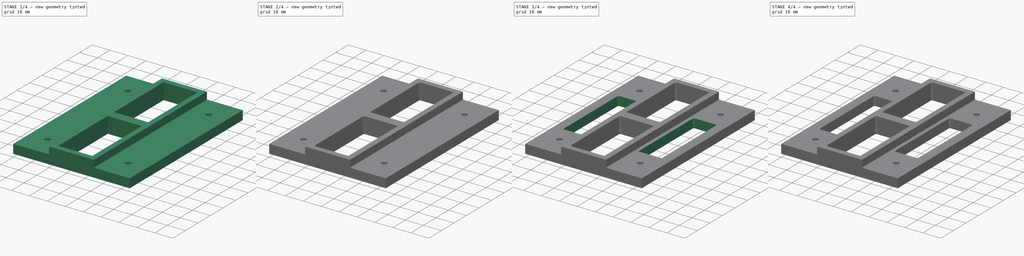
[diagram: build sequence overview — one tinted view per stage of 4, left to right]
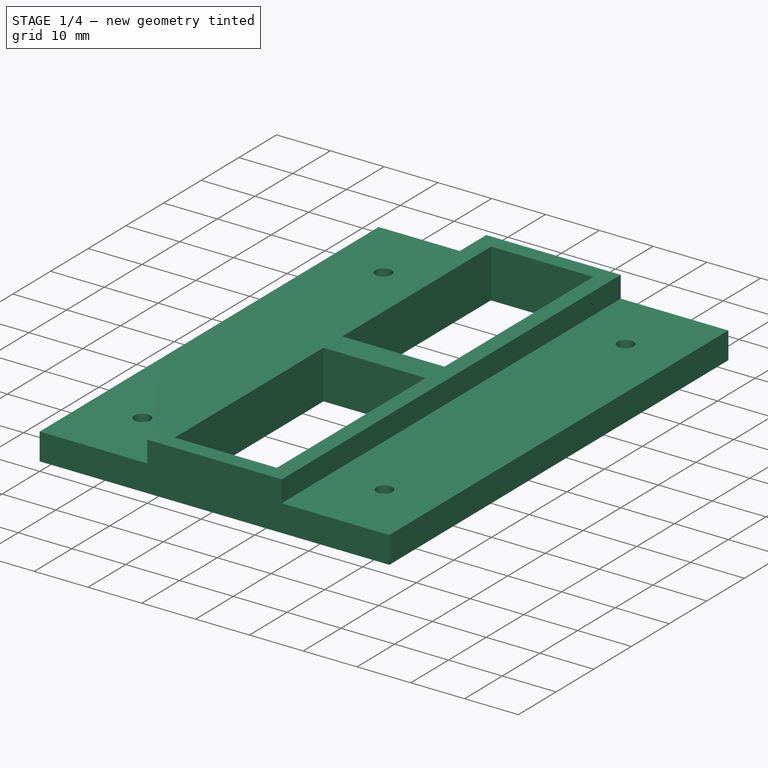
[diagram: stage 1 of 4 — iso view after this stage's code; geometry added in this stage tinted green]
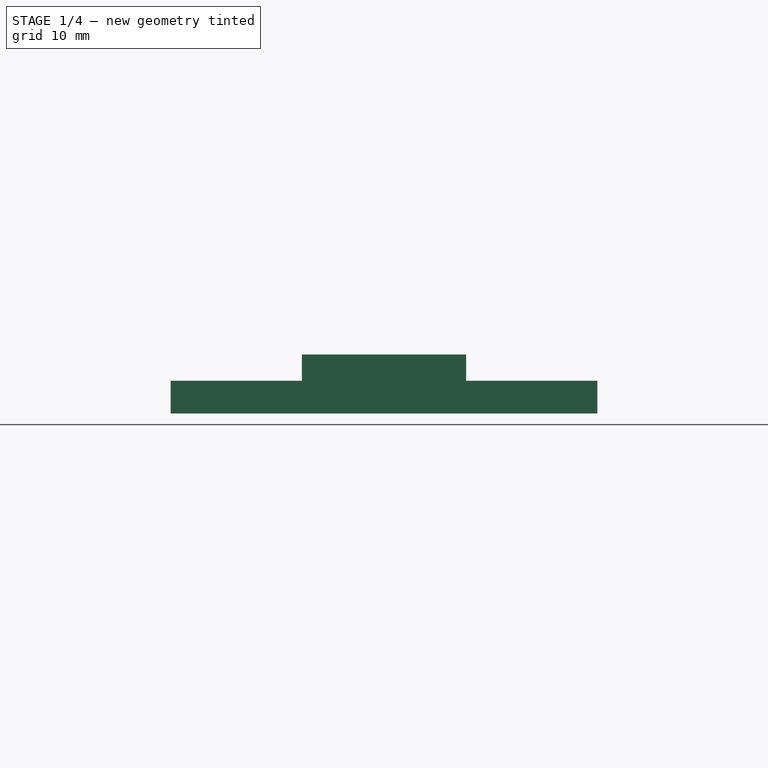
[diagram: stage 1 of 4 — front view after this stage's code; geometry added in this stage tinted green]
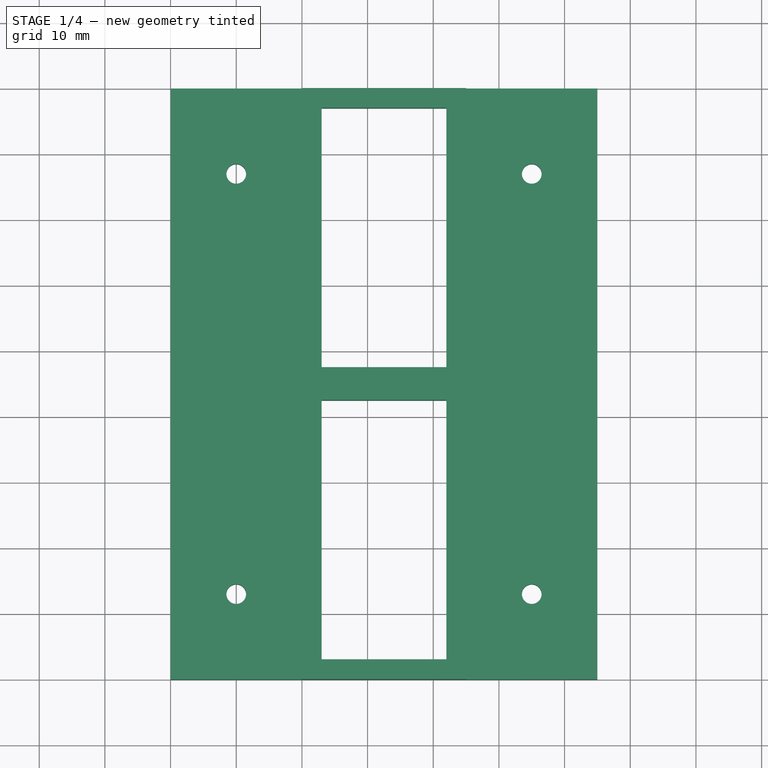
[diagram: stage 1 of 4 — top view after this stage's code; geometry added in this stage tinted green]
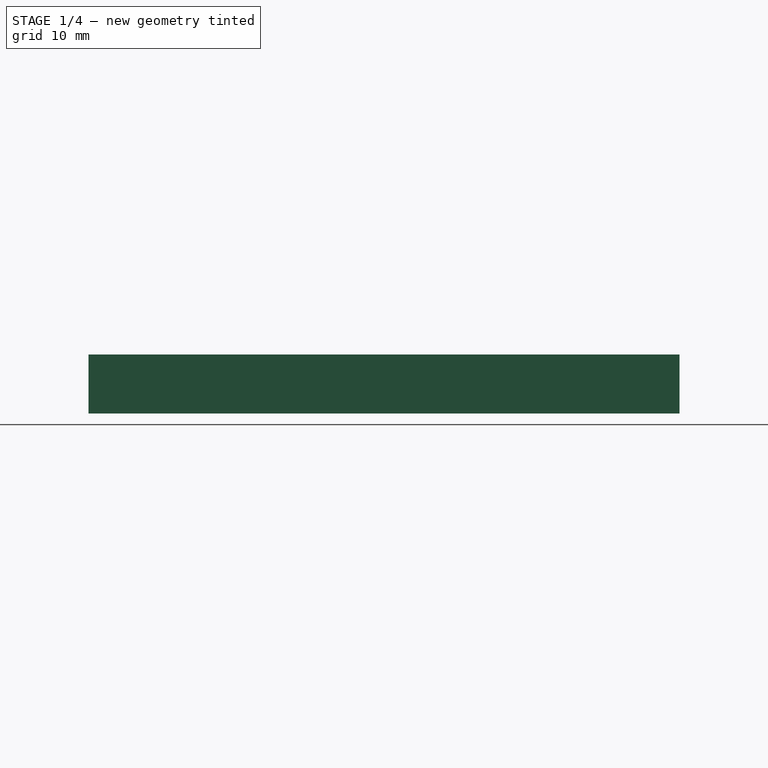
[diagram: stage 1 of 4 — right view after this stage's code; geometry added in this stage tinted green]
FCSTD DOCUMENT  (FreeCAD 0.16R6710 (Git))
Label: LiaisonPlateau_ht
License: All rights reserved
LicenseURL: http://en.wikipedia.org/wiki/All_rights_reserved
objects: PartDesign::Fillet×8, Sketcher::SketchObject×5, PartDesign::Pocket×3, PartDesign::Pad×2
note: 23 computed .brp shape members not serialized (recipe doc carries the construction recipe); baked Part::Feature solids carry a one-line shape summary decoded from their .brp

FEATURE [Sketcher::SketchObject] Sketch
  sketch-geometry (9):
    g0: LineSegment StartX=0 StartY=0 StartZ=0 EndX=65 EndY=0 EndZ=0
    g1: LineSegment StartX=65 StartY=0 StartZ=0 EndX=65 EndY=-90 EndZ=0
    g2: LineSegment StartX=65 StartY=-90 StartZ=0 EndX=0 EndY=-90 EndZ=0
    g3: LineSegment StartX=0 StartY=-90 StartZ=0 EndX=0 EndY=0 EndZ=0
    g4: Circle CenterX=10 CenterY=-13 CenterZ=0 NormalX=0 NormalY=0 NormalZ=1 Radius=1.5
    g5: Circle CenterX=10 CenterY=-77 CenterZ=0 NormalX=0 NormalY=0 NormalZ=1 Radius=1.5
    g6: Circle CenterX=55 CenterY=-13 CenterZ=0 NormalX=0 NormalY=0 NormalZ=1 Radius=1.5
    g7: Circle CenterX=55 CenterY=-77 CenterZ=0 NormalX=0 NormalY=0 NormalZ=1 Radius=1.5
    g8: LineSegment [constr] StartX=32.5 StartY=0 StartZ=0 EndX=32.5 EndY=-90 EndZ=0
  constraints (28):
    c: Coincident(g0,g1)
    c: Coincident(g1,g2)
    c: Coincident(g2,g3)
    c: Coincident(g3,g0)
    c: Horizontal(g0)
    c: Horizontal(g2)
    c: Vertical(g1)
    c: Vertical(g3)
    c: PointOnObject(g-1,g3)
    c: DistanceX(g0,g0) = 65
    c: Coincident(g0,g-1)
    c: DistanceY(g1,g1) = 90
    c: Vertical(g8)
    c: Symmetric(g-1,g0,g8)
    c: Radius(g4) = 1.5
    c: Equal(g4,g5)
    c: Equal(g4,g7)
    c: Equal(g4,g6)
    c: DistanceY(g1,g7) = 13
    c: DistanceY(g2,g5) = 13
    c: DistanceY(g6,g0) = 13
    c: DistanceY(g4,g-1) = 13
    c: Symmetric(g4,g6,g8)
    c: DistanceX(g4,g6) = 45
    c: Symmetric(g7,g5,g8)
    c: DistanceX(g5,g7) = 45
    c: PointOnObject(g8,g0)
    c: PointOnObject(g8,g2)
FEATURE [PartDesign::Pad] Pad
  Length = 5
  Length2 = 100
  Sketch = -> Sketch
  Type = 0
FEATURE [Sketcher::SketchObject] Sketch002
  ExternalGeometry = -> [Pad]
  Placement = pos=(0,0,5) rot=(0,0,1;0rad)
  Support = -> Pad [Face10]
  sketch-geometry (4):
    g0: LineSegment StartX=45 StartY=0 StartZ=0 EndX=45 EndY=-90 EndZ=0
    g1: LineSegment StartX=45 StartY=-90 StartZ=0 EndX=20 EndY=-90 EndZ=0
    g2: LineSegment StartX=20 StartY=-90 StartZ=0 EndX=20 EndY=0 EndZ=0
    g3: LineSegment StartX=20 StartY=0 StartZ=0 EndX=45 EndY=0 EndZ=0
  constraints (13):
    c: Coincident(g0,g1)
    c: Coincident(g1,g2)
    c: Horizontal(g1)
    c: Vertical(g0)
    c: Vertical(g2)
    c: PointOnObject(g0,g-4)
    c: PointOnObject(g0,g-3)
    c: DistanceX(g0,g-3) = 20
    c: DistanceX(g-1,g2) = 20
    c: PointOnObject(g3,g2)
    c: Horizontal(g3)
    c: Coincident(g3,g2)
    c: Coincident(g3,g0)
FEATURE [PartDesign::Pad] Pad001
  Length = 4
  Length2 = 100
  Sketch = -> Sketch002
  Type = 0
FEATURE [Sketcher::SketchObject] Sketch003
  ExternalGeometry = -> [Pad001]
  Placement = pos=(0,0,9) rot=(0,0,1;0rad)
  Support = -> Pad001 [Face16]
  sketch-geometry (11):
    g0: LineSegment StartX=23 StartY=-3 StartZ=0 EndX=42 EndY=-3 EndZ=0
    g1: LineSegment StartX=42 StartY=-3 StartZ=0 EndX=42 EndY=-42.5 EndZ=0
    g2: LineSegment StartX=42 StartY=-87 StartZ=0 EndX=23 EndY=-87 EndZ=0
    g3: LineSegment StartX=23 StartY=-87 StartZ=0 EndX=23 EndY=-47.5 EndZ=0
    g4: LineSegment StartX=23 StartY=-42.5 StartZ=0 EndX=42 EndY=-42.5 EndZ=0
    g5: LineSegment StartX=23 StartY=-47.5 StartZ=0 EndX=42 EndY=-47.5 EndZ=0
    g6: LineSegment [constr] StartX=23 StartY=-45 StartZ=0 EndX=42 EndY=-45 EndZ=0
    g7: LineSegment StartX=23 StartY=-42.5 StartZ=0 EndX=23 EndY=-3 EndZ=0
    g8: LineSegment StartX=42 StartY=-47.5 StartZ=0 EndX=42 EndY=-87 EndZ=0
    g9: LineSegment [constr] StartX=23 StartY=-42.5 StartZ=0 EndX=23 EndY=-47.5 EndZ=0
    g10: LineSegment [constr] StartX=42 StartY=-42.5 StartZ=0 EndX=42 EndY=-47.5 EndZ=0
  constraints (32):
    c: Coincident(g0,g1)
    c: Coincident(g8,g2)
    c: Coincident(g2,g3)
    c: Coincident(g7,g0)
    c: Horizontal(g0)
    c: Horizontal(g2)
    c: Vertical(g1)
    c: Vertical(g3)
    c: DistanceY(g0,g-3) = 3
    c: DistanceX(g0,g-3) = 3
    c: DistanceX(g-4,g0) = 3
    c: DistanceY(g-4,g2) = 3
    c: Horizontal(g4)
    c: PointOnObject(g5,g1)
    c: Horizontal(g5)
    c: Horizontal(g6)
    c: Symmetric(g0,g2,g6)
    c: PointOnObject(g7,g4)
    c: Tangent(g3,g7)
    c: Coincident(g3,g5)
    c: Coincident(g1,g4)
    c: Tangent(g1,g8)
    c: PointOnObject(g8,g5)
    c: Coincident(g9,g4)
    c: Coincident(g9,g3)
    c: Coincident(g10,g1)
    c: Coincident(g10,g5)
    c: PointOnObject(g6,g10)
    c: PointOnObject(g6,g9)
    c: Coincident(g4,g7)
    c: DistanceY(g3,g4) = 5
    c: Symmetric(g4,g3,g6)
FEATURE [PartDesign::Pocket] Pocket
  Length = 5
  Sketch = -> Sketch003
  Type = 1
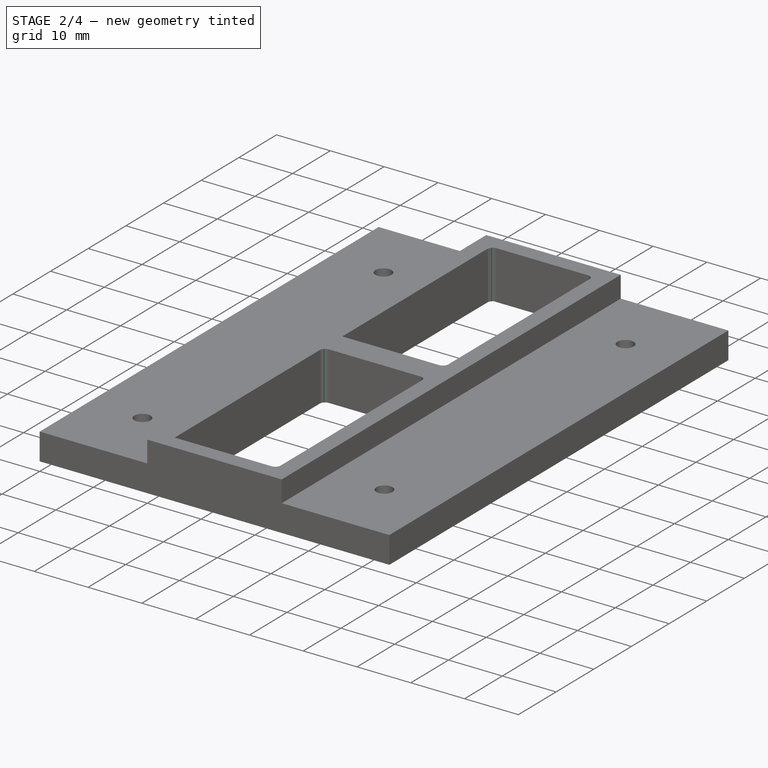
[diagram: stage 2 of 4 — iso view after this stage's code; geometry added in this stage tinted green]
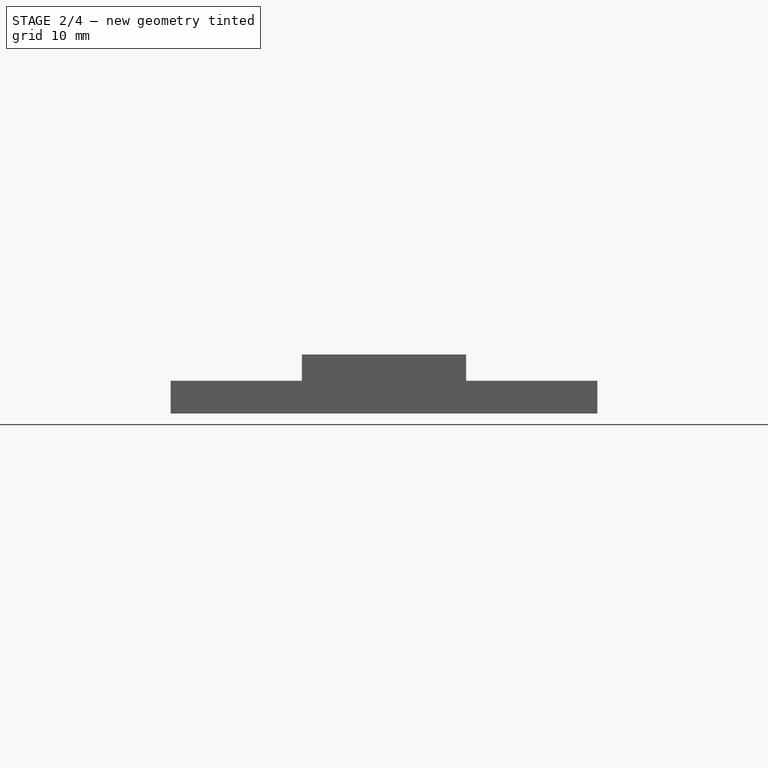
[diagram: stage 2 of 4 — front view after this stage's code; geometry added in this stage tinted green]
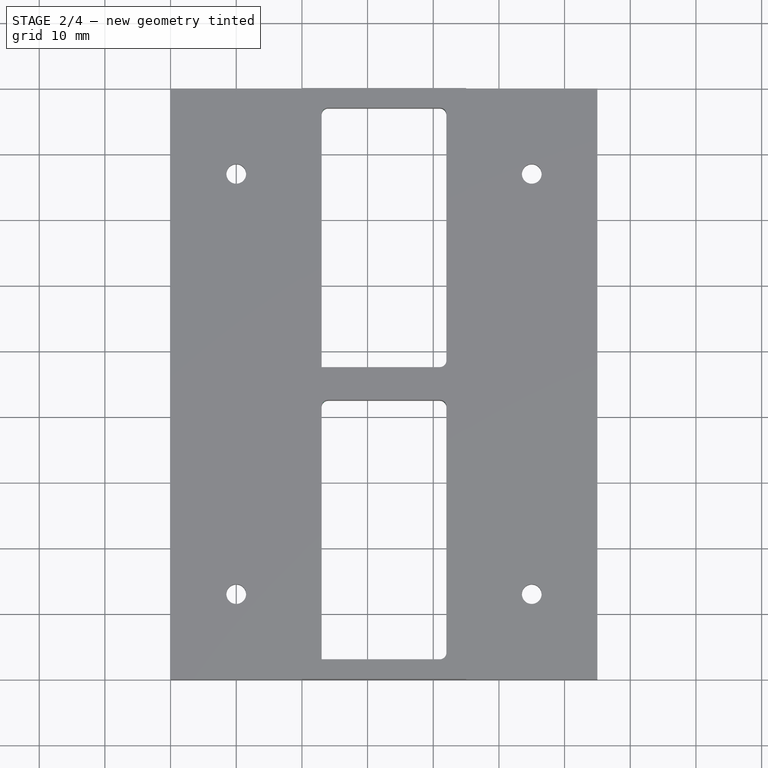
[diagram: stage 2 of 4 — top view after this stage's code; geometry added in this stage tinted green]
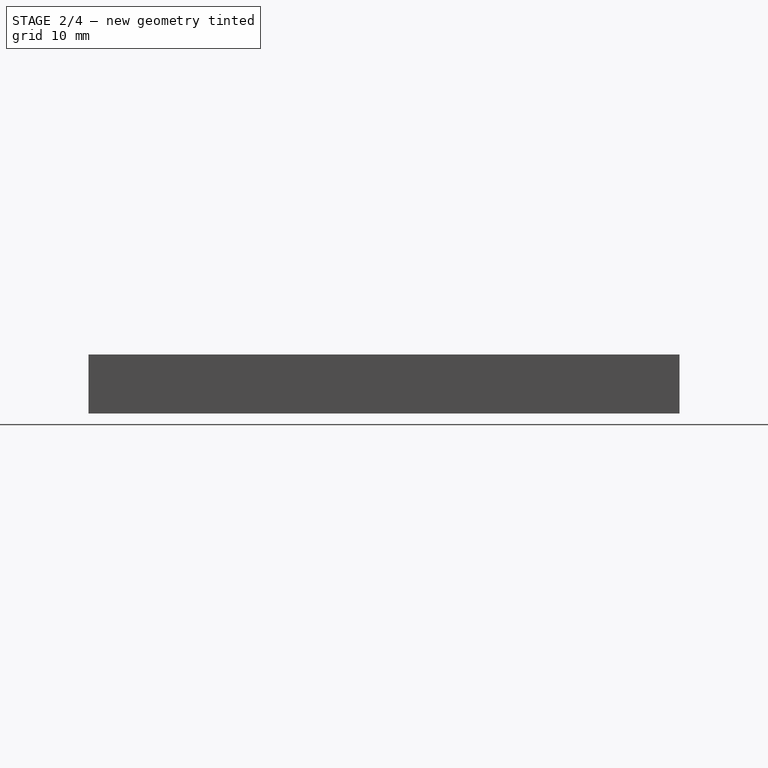
[diagram: stage 2 of 4 — right view after this stage's code; geometry added in this stage tinted green]
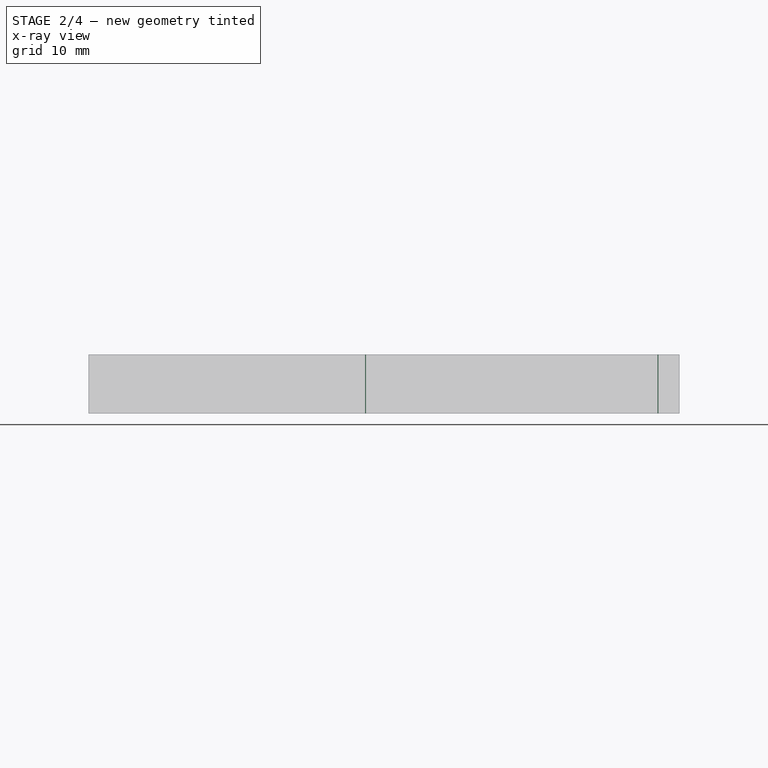
[diagram: stage 2 of 4 — x-ray composite at the right view; earlier geometry ghosted, this stage's added geometry solid]
FEATURE [PartDesign::Fillet] Fillet
  Base = -> Pocket [Edge51,Edge43]
  Radius = 1
FEATURE [PartDesign::Fillet] Fillet001
  Base = -> Fillet [Edge27,Edge57]
  Radius = 1
FEATURE [PartDesign::Fillet] Fillet002
  Base = -> Fillet001 [Edge29,Edge61]
  Radius = 1
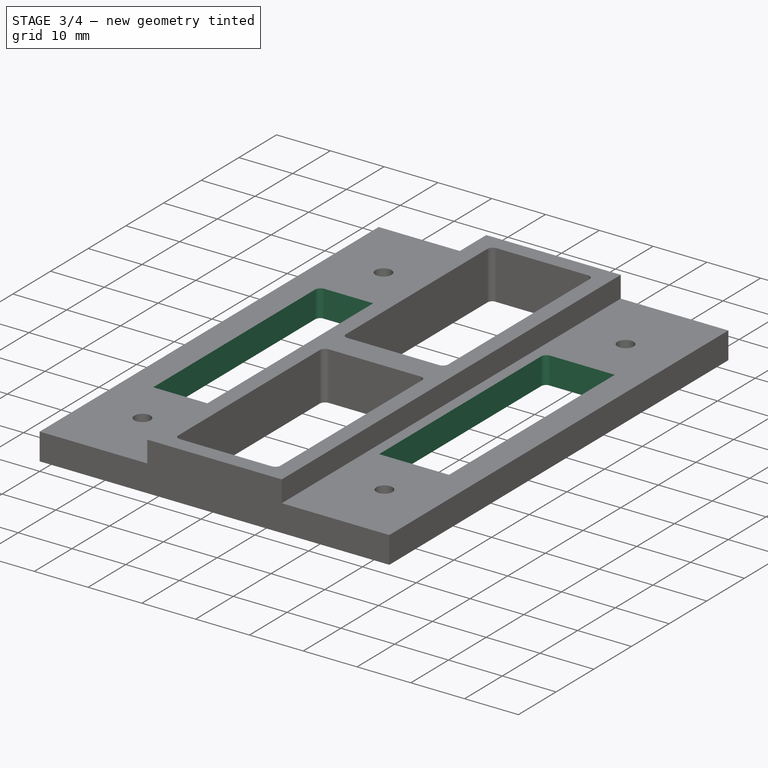
[diagram: stage 3 of 4 — iso view after this stage's code; geometry added in this stage tinted green]
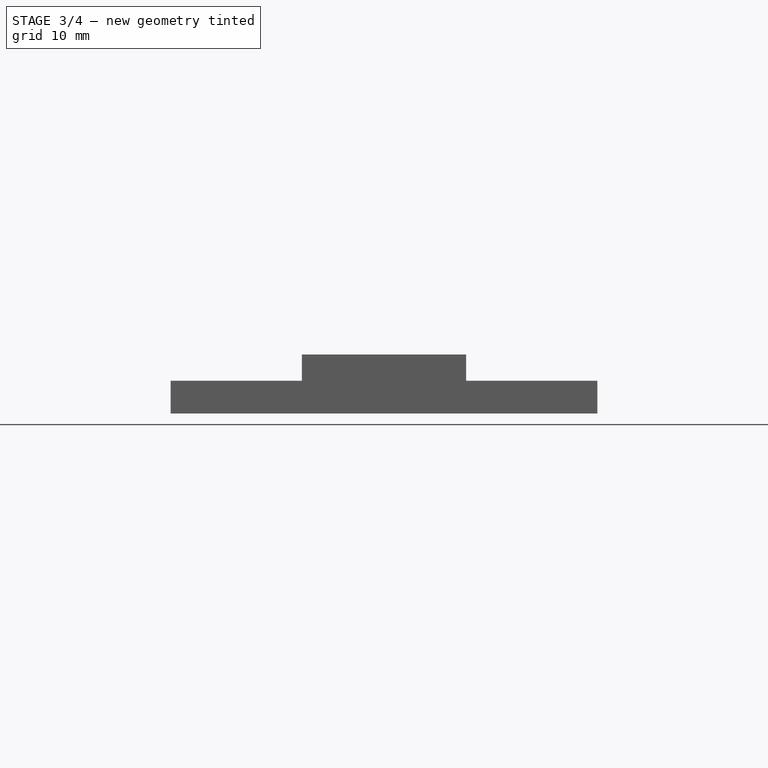
[diagram: stage 3 of 4 — front view after this stage's code; geometry added in this stage tinted green]
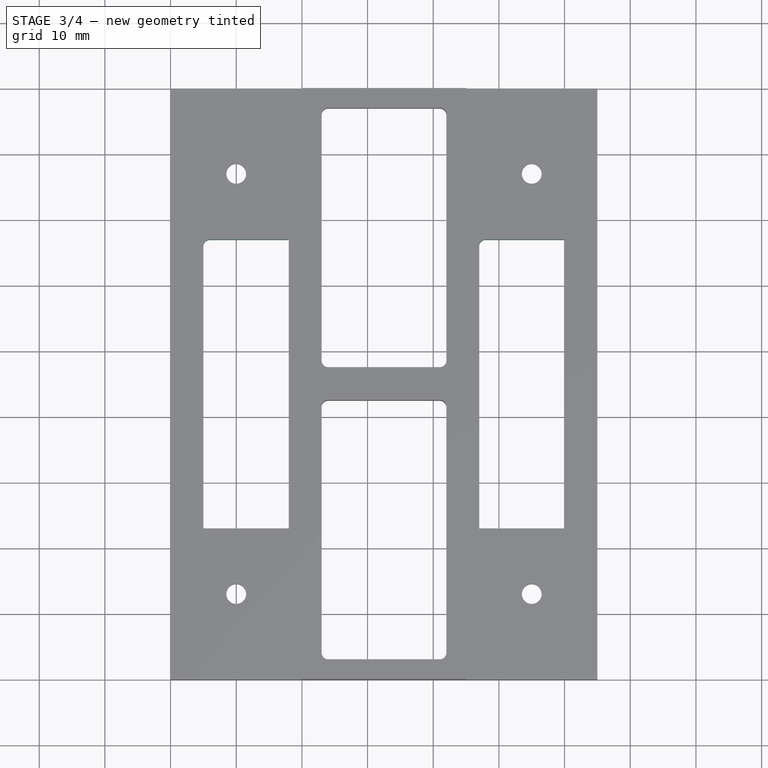
[diagram: stage 3 of 4 — top view after this stage's code; geometry added in this stage tinted green]
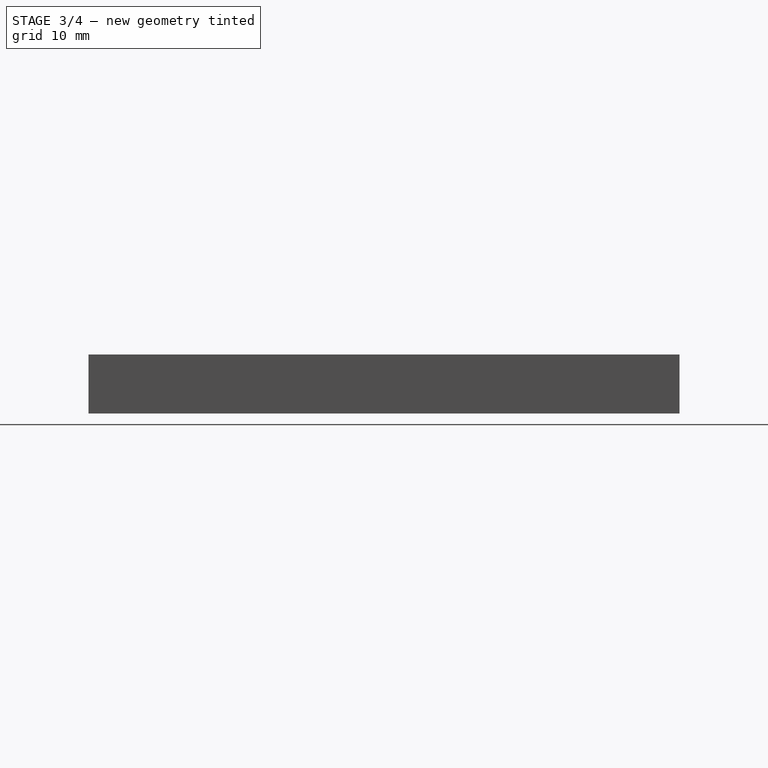
[diagram: stage 3 of 4 — right view after this stage's code; geometry added in this stage tinted green]
FEATURE [PartDesign::Fillet] Fillet003
  Base = -> Fillet002 [Edge31,Edge65]
  Radius = 1
FEATURE [Sketcher::SketchObject] Sketch004
  ExternalGeometry = -> [Fillet003]
  Placement = pos=(0,0,0) rot=(1,0,0;3.14159rad)
  Support = -> Fillet003 [Face1]
  sketch-geometry (4):
    g0: Circle CenterX=10 CenterY=77 CenterZ=0 NormalX=0 NormalY=0 NormalZ=1 Radius=3
    g1: Circle CenterX=55 CenterY=77 CenterZ=0 NormalX=0 NormalY=0 NormalZ=1 Radius=3
    g2: Circle CenterX=55 CenterY=13 CenterZ=0 NormalX=0 NormalY=0 NormalZ=1 Radius=3
    g3: Circle CenterX=10 CenterY=13 CenterZ=0 NormalX=0 NormalY=0 NormalZ=1 Radius=3
  constraints (8):
    c: Radius(g1) = 3
    c: Equal(g1,g0)
    c: Equal(g1,g3)
    c: Equal(g1,g2)
    c: Coincident(g0,g-3)
    c: Coincident(g1,g-4)
    c: Coincident(g3,g-6)
    c: Coincident(g2,g-5)
FEATURE [PartDesign::Pocket] Pocket001
  Length = 3
  Sketch = -> Sketch004
  Type = 0
FEATURE [Sketcher::SketchObject] Sketch005
  ExternalGeometry = -> [Pocket001]
  Placement = pos=(0,0,0) rot=(1,0,0;3.14159rad)
  Support = -> Pocket001 [Face1]
  sketch-geometry (8):
    g0: LineSegment StartX=5 StartY=67 StartZ=0 EndX=18 EndY=67 EndZ=0
    g1: LineSegment StartX=18 StartY=67 StartZ=0 EndX=18 EndY=23 EndZ=0
    g2: LineSegment StartX=18 StartY=23 StartZ=0 EndX=5 EndY=23 EndZ=0
    g3: LineSegment StartX=5 StartY=23 StartZ=0 EndX=5 EndY=67 EndZ=0
    g4: LineSegment StartX=47 StartY=67 StartZ=0 EndX=60 EndY=67 EndZ=0
    g5: LineSegment StartX=60 StartY=67 StartZ=0 EndX=60 EndY=23 EndZ=0
    g6: LineSegment StartX=60 StartY=23 StartZ=0 EndX=47 EndY=23 EndZ=0
    g7: LineSegment StartX=47 StartY=23 StartZ=0 EndX=47 EndY=67 EndZ=0
  constraints (24):
    c: Coincident(g0,g1)
    c: Coincident(g1,g2)
    c: Coincident(g2,g3)
    c: Coincident(g3,g0)
    c: Horizontal(g0)
    c: Horizontal(g2)
    c: Vertical(g1)
    c: Vertical(g3)
    c: Coincident(g4,g5)
    c: Coincident(g5,g6)
    c: Coincident(g6,g7)
    c: Coincident(g7,g4)
    c: Horizontal(g4)
    c: Horizontal(g6)
    c: Vertical(g5)
    c: Vertical(g7)
    c: DistanceY(g4,g-3) = 10
    c: DistanceX(g-9,g4) = 5
    c: DistanceX(g4,g-7) = 5
    c: DistanceY(g-6,g5) = 10
    c: DistanceX(g-1,g2) = 5
    c: DistanceY(g-5,g2) = 10
    c: DistanceX(g0,g-10) = 5
    c: DistanceY(g0,g-4) = 10
FEATURE [PartDesign::Pocket] Pocket002
  Length = 5
  Sketch = -> Sketch005
  Type = 1
FEATURE [PartDesign::Fillet] Fillet004
  Base = -> Pocket002 [Edge47,Edge96]
  Radius = 1
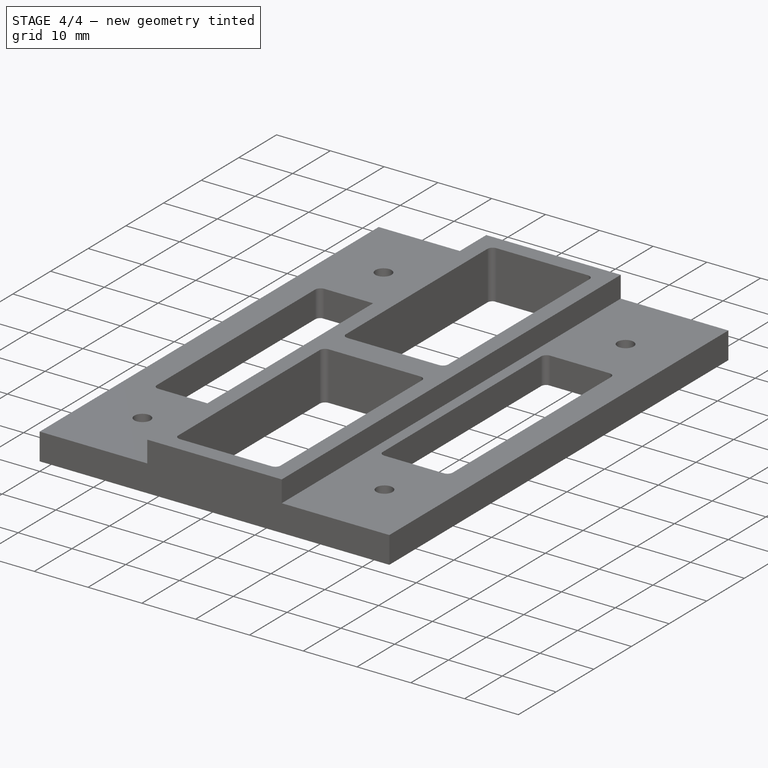
[diagram: stage 4 of 4 — iso view after this stage's code; geometry added in this stage tinted green]
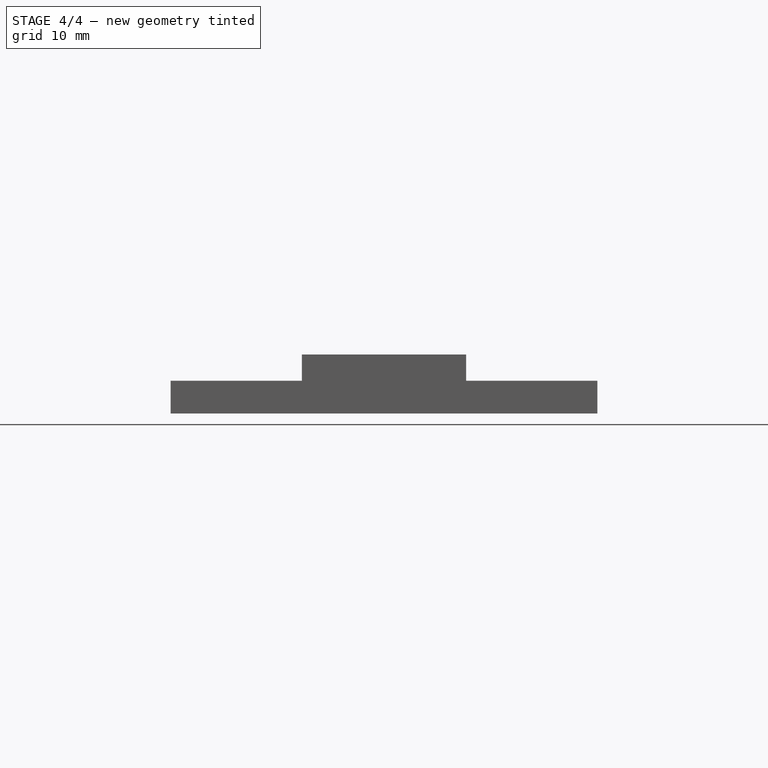
[diagram: stage 4 of 4 — front view after this stage's code; geometry added in this stage tinted green]
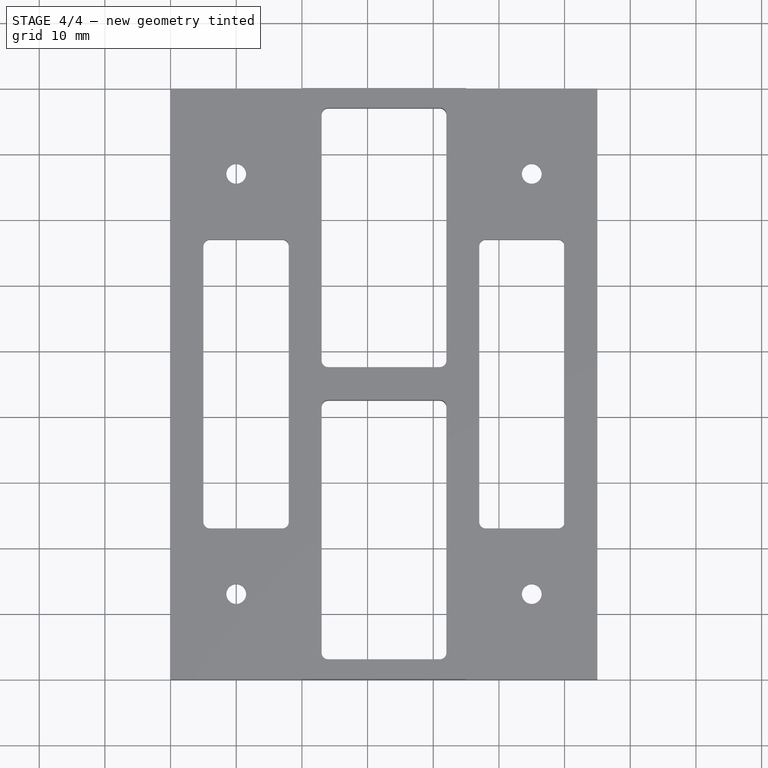
[diagram: stage 4 of 4 — top view after this stage's code; geometry added in this stage tinted green]
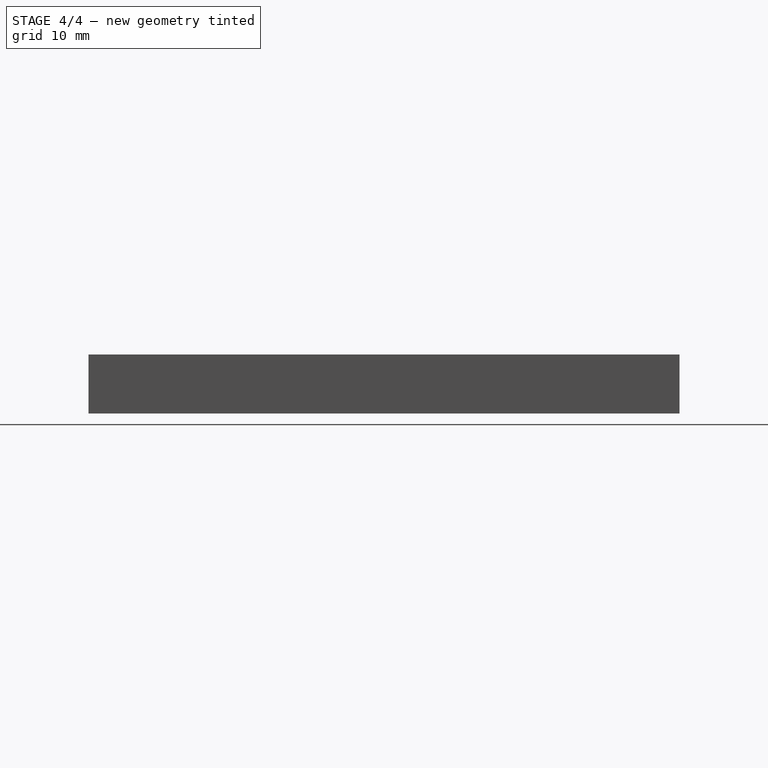
[diagram: stage 4 of 4 — right view after this stage's code; geometry added in this stage tinted green]
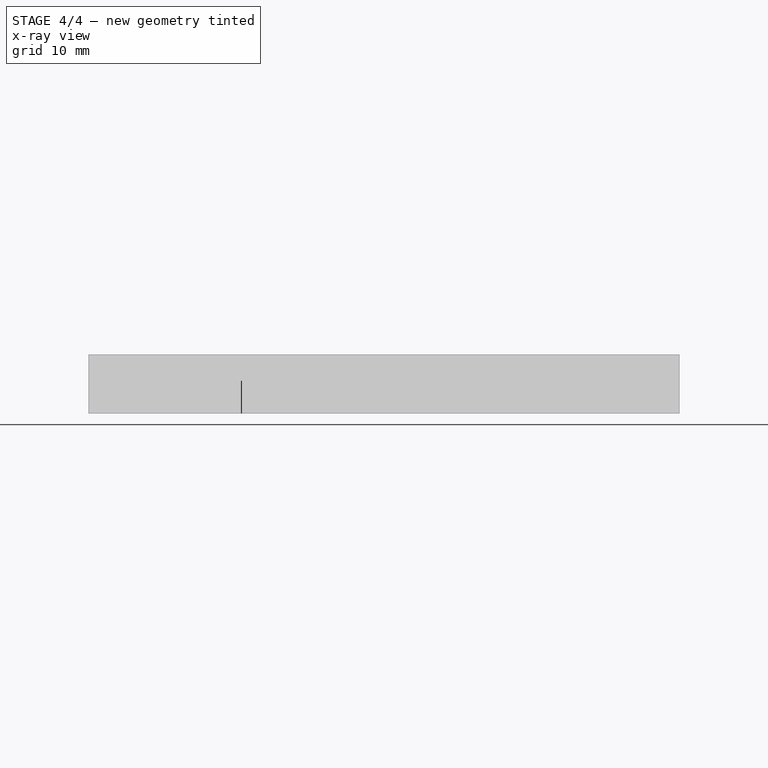
[diagram: stage 4 of 4 — x-ray composite at the right view; earlier geometry ghosted, this stage's added geometry solid]
FEATURE [PartDesign::Fillet] Fillet005
  Base = -> Fillet004 [Edge36,Edge104]
  Radius = 1
FEATURE [PartDesign::Fillet] Fillet006
  Base = -> Fillet005 [Edge44,Edge108]
  Radius = 1
FEATURE [PartDesign::Fillet] Fillet007
  Base = -> Fillet006 [Edge46,Edge112]
  Radius = 1
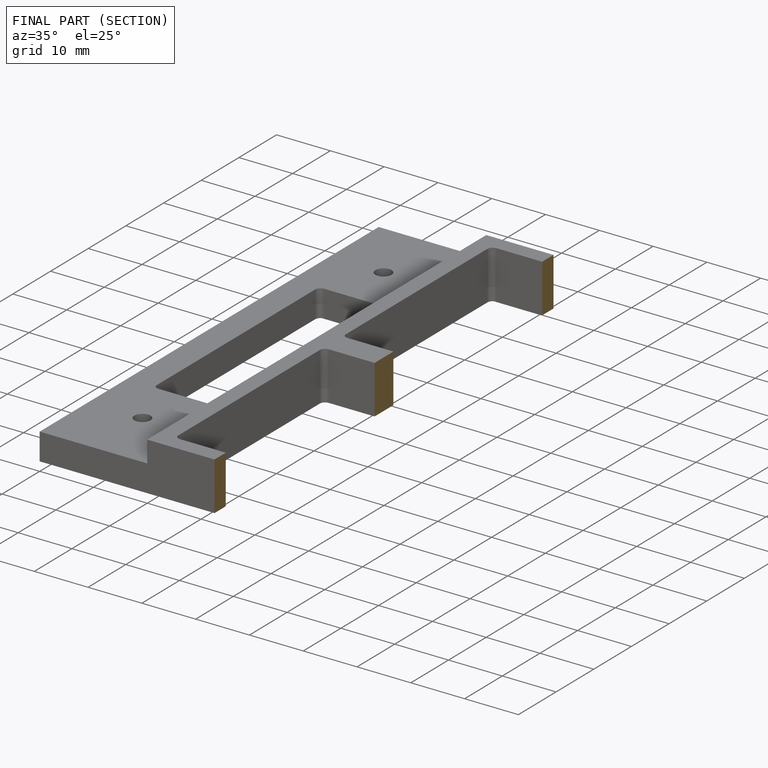
[diagram: finished part — half-section view (interior)]
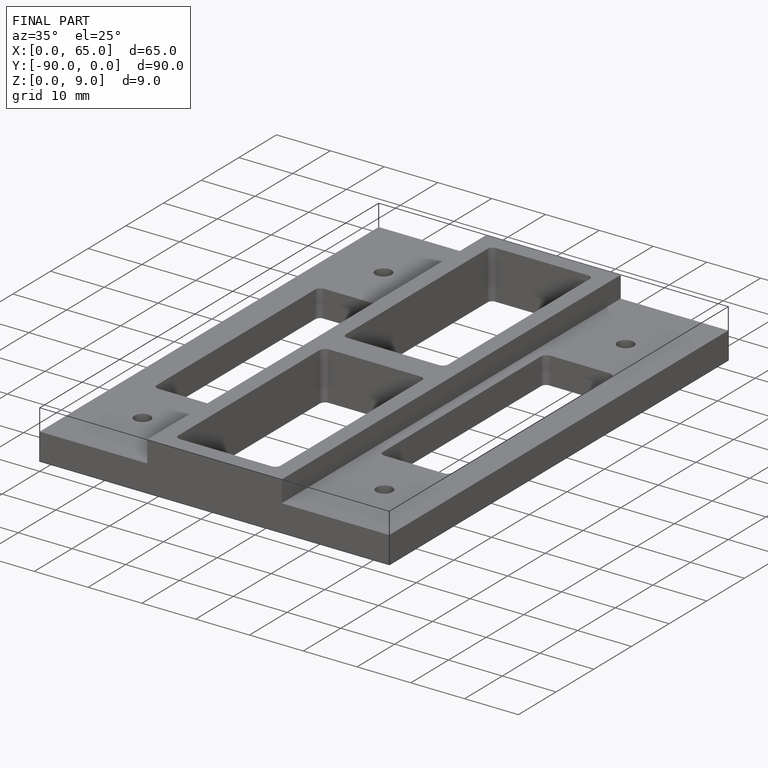
[diagram: finished part — iso view with bounding-box wireframe]
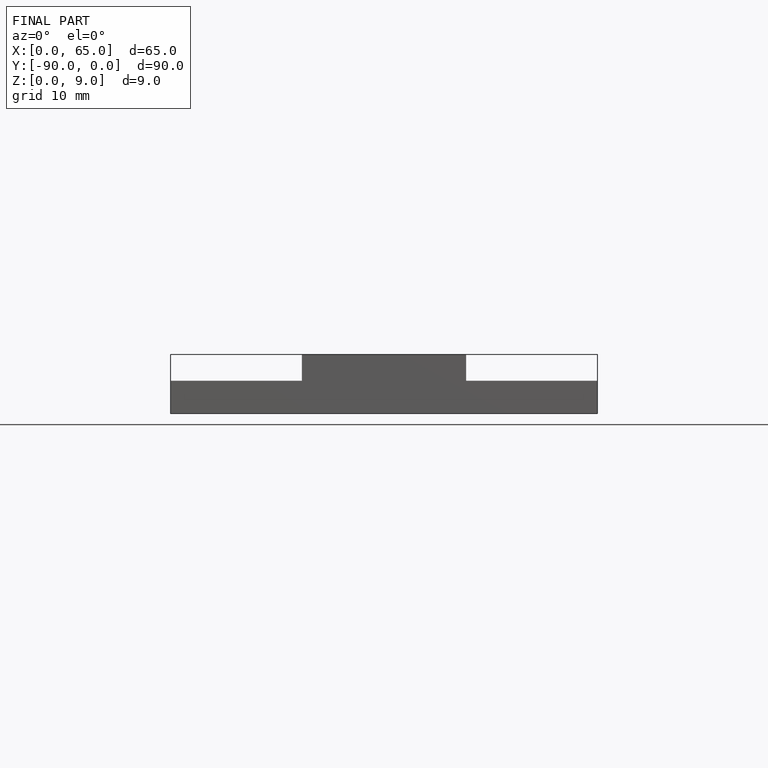
[diagram: finished part — front view with bounding-box wireframe]
